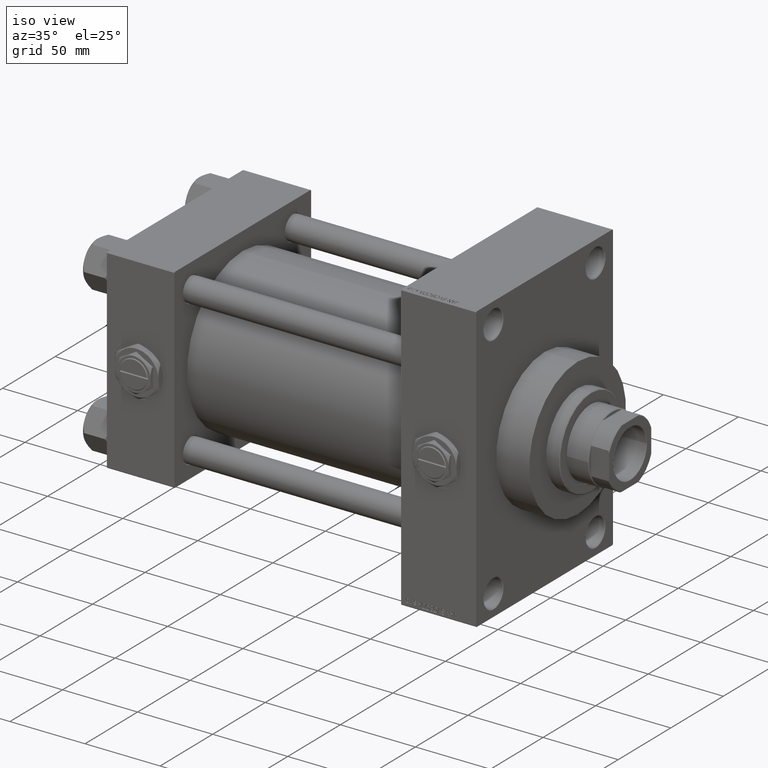
[diagram: clean part render]
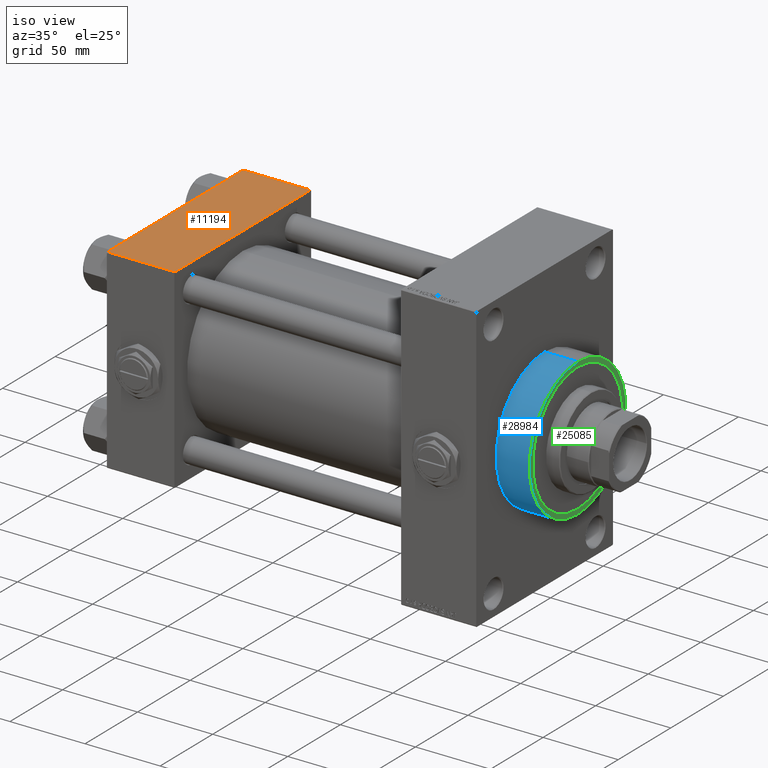
[diagram: same view with three faces highlighted in distinct colors, each labeled with its STEP entity id]
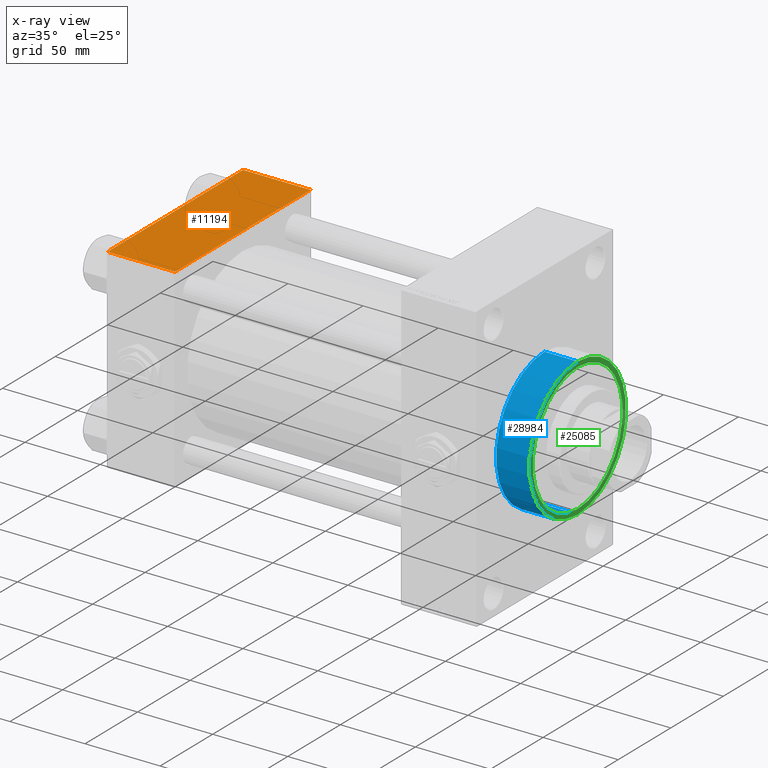
[diagram: x-ray of the same camera — body ghosted, the three highlighted faces saturated]
A machine part, iso view with three faces highlighted in distinct colors.
The next image is the same camera in x-ray (body ghosted, the three faces saturated) — at least one of them is partly hidden behind the body in this view.
Their STEP definitions:

[orange] entity #11194 — the highlighted planar face has unit normal (0, 0, -1).
#2160 = VECTOR ( 'NONE', #17843, 1000.000000000000000 ) ;
#2290 = ORIENTED_EDGE ( 'NONE', *, *, #33553, .T. ) ;
#3075 = AXIS2_PLACEMENT_3D ( 'NONE', #9891, #44373, #13673 ) ;
#4411 = EDGE_CURVE ( 'NONE', #39426, #11764, #44517, .T. ) ;
#6477 = VECTOR ( 'NONE', #29292, 1000.000000000000000 ) ;
#6479 = EDGE_CURVE ( 'NONE', #44081, #21522, #26556, .T. ) ;
#7022 = CARTESIAN_POINT ( 'NONE',  ( 0.000000000000000000, 64.49999999999997158, 65.00000000000001421 ) ) ;
#8071 = ORIENTED_EDGE ( 'NONE', *, *, #4411, .T. ) ;
#8901 = CARTESIAN_POINT ( 'NONE',  ( 0.000000000000000000, -64.49999999999997158, 65.00000000000000000 ) ) ;
#9658 = CARTESIAN_POINT ( 'NONE',  ( 45.00000000000000000, 65.00000000000000000, 65.00000000000001421 ) ) ;
#9891 = CARTESIAN_POINT ( 'NONE',  ( 45.00000000000000000, 65.00000000000000000, 65.00000000000001421 ) ) ;
#11182 = CARTESIAN_POINT ( 'NONE',  ( 45.00000000000000000, 64.49999999999997158, 65.00000000000001421 ) ) ;
#11194 = ADVANCED_FACE ( 'NONE', ( #29043 ), #48170, .F. ) ;
#11764 = VERTEX_POINT ( 'NONE', #37249 ) ;
#12440 = ORIENTED_EDGE ( 'NONE', *, *, #6479, .T. ) ;
#13673 = DIRECTION ( 'NONE',  ( 0.000000000000000000, 1.000000000000000000, 1.067522139062650548E-16 ) ) ;
#17843 = DIRECTION ( 'NONE',  ( 1.000000000000000000, 0.000000000000000000, 0.000000000000000000 ) ) ;
#20947 = ORIENTED_EDGE ( 'NONE', *, *, #23008, .F. ) ;
#21522 = VERTEX_POINT ( 'NONE', #7022 ) ;
#23008 = EDGE_CURVE ( 'NONE', #44081, #11764, #44135, .T. ) ;
#26556 = LINE ( 'NONE', #44912, #36004 ) ;
#28641 = DIRECTION ( 'NONE',  ( 0.000000000000000000, -1.000000000000000000, -1.067522139062650425E-16 ) ) ;
#29043 = FACE_OUTER_BOUND ( 'NONE', #39675, .T. ) ;
#29292 = DIRECTION ( 'NONE',  ( 0.000000000000000000, -1.000000000000000000, -1.067522139062650425E-16 ) ) ;
#30080 = DIRECTION ( 'NONE',  ( -1.000000000000000000, 0.000000000000000000, 0.000000000000000000 ) ) ;
#32412 = LINE ( 'NONE', #47771, #34039 ) ;
#33553 = EDGE_CURVE ( 'NONE', #21522, #39426, #32412, .T. ) ;
#34039 = VECTOR ( 'NONE', #28641, 1000.000000000000000 ) ;
#36004 = VECTOR ( 'NONE', #30080, 1000.000000000000000 ) ;
#36964 = CARTESIAN_POINT ( 'NONE',  ( 45.00000000000000000, -64.49999999999997158, 65.00000000000000000 ) ) ;
#37249 = CARTESIAN_POINT ( 'NONE',  ( 45.00000000000000000, -64.49999999999997158, 65.00000000000000000 ) ) ;
#39426 = VERTEX_POINT ( 'NONE', #8901 ) ;
#39675 = EDGE_LOOP ( 'NONE', ( #2290, #8071, #20947, #12440 ) ) ;
#44081 = VERTEX_POINT ( 'NONE', #11182 ) ;
#44135 = LINE ( 'NONE', #9658, #6477 ) ;
#44373 = DIRECTION ( 'NONE',  ( 0.000000000000000000, 1.067522139062650548E-16, -1.000000000000000000 ) ) ;
#44517 = LINE ( 'NONE', #36964, #2160 ) ;
#44912 = CARTESIAN_POINT ( 'NONE',  ( 0.000000000000000000, 64.49999999999997158, 65.00000000000001421 ) ) ;
#47771 = CARTESIAN_POINT ( 'NONE',  ( 0.000000000000000000, 65.00000000000000000, 65.00000000000001421 ) ) ;
#48170 = PLANE ( 'NONE',  #3075 ) ;

[blue] entity #28984 — the highlighted cylindrical surface (partial cylindrical patch) has radius 46 mm, axis along (-1, -0, -0).
#978 = DIRECTION ( 'NONE',  ( -1.000000000000000000, -0.000000000000000000, -0.000000000000000000 ) ) ;
#1813 = VERTEX_POINT ( 'NONE', #43743 ) ;
#3583 = CARTESIAN_POINT ( 'NONE',  ( 268.0000000000000000, 0.000000000000000000, 46.00000000000000000 ) ) ;
#5073 = VERTEX_POINT ( 'NONE', #35129 ) ;
#5233 = CARTESIAN_POINT ( 'NONE',  ( 246.0000000000000000, 0.000000000000000000, 0.000000000000000000 ) ) ;
#6692 = AXIS2_PLACEMENT_3D ( 'NONE', #29787, #49166, #10880 ) ;
#6700 = CARTESIAN_POINT ( 'NONE',  ( 268.0000000000000000, 5.633375276077824704E-15, -46.00000000000000000 ) ) ;
#8674 = ORIENTED_EDGE ( 'NONE', *, *, #42513, .T. ) ;
#10136 = FACE_OUTER_BOUND ( 'NONE', #34514, .T. ) ;
#10880 = DIRECTION ( 'NONE',  ( 0.000000000000000000, 0.000000000000000000, 1.000000000000000000 ) ) ;
#11114 = AXIS2_PLACEMENT_3D ( 'NONE', #24703, #13610, #25444 ) ;
#12090 = VECTOR ( 'NONE', #16855, 1000.000000000000000 ) ;
#13610 = DIRECTION ( 'NONE',  ( 1.000000000000000000, 0.000000000000000000, 0.000000000000000000 ) ) ;
#15138 = VECTOR ( 'NONE', #978, 1000.000000000000000 ) ;
#16604 = LINE ( 'NONE', #6700, #12090 ) ;
#16831 = VERTEX_POINT ( 'NONE', #3583 ) ;
#16855 = DIRECTION ( 'NONE',  ( -1.000000000000000000, -0.000000000000000000, -0.000000000000000000 ) ) ;
#19355 = LINE ( 'NONE', #20100, #15138 ) ;
#20100 = CARTESIAN_POINT ( 'NONE',  ( 268.0000000000000000, 0.000000000000000000, 46.00000000000000000 ) ) ;
#21570 = AXIS2_PLACEMENT_3D ( 'NONE', #5233, #32677, #49212 ) ;
#24337 = CARTESIAN_POINT ( 'NONE',  ( 246.0000000000000000, 5.633375276077824704E-15, -46.00000000000000000 ) ) ;
#24703 = CARTESIAN_POINT ( 'NONE',  ( 268.0000000000000000, 0.000000000000000000, 0.000000000000000000 ) ) ;
#25444 = DIRECTION ( 'NONE',  ( 0.000000000000000000, 0.000000000000000000, -1.000000000000000000 ) ) ;
#28558 = VERTEX_POINT ( 'NONE', #24337 ) ;
#28984 = ADVANCED_FACE ( 'NONE', ( #10136 ), #49418, .T. ) ;
#29316 = ORIENTED_EDGE ( 'NONE', *, *, #40971, .F. ) ;
#29787 = CARTESIAN_POINT ( 'NONE',  ( 268.0000000000000000, 0.000000000000000000, 0.000000000000000000 ) ) ;
#30531 = ORIENTED_EDGE ( 'NONE', *, *, #49752, .F. ) ;
#32677 = DIRECTION ( 'NONE',  ( 1.000000000000000000, 0.000000000000000000, 0.000000000000000000 ) ) ;
#32836 = CIRCLE ( 'NONE', #11114, 46.00000000000000000 ) ;
#34514 = EDGE_LOOP ( 'NONE', ( #30531, #29316, #42559, #8674 ) ) ;
#35129 = CARTESIAN_POINT ( 'NONE',  ( 246.0000000000000000, 0.000000000000000000, 46.00000000000000000 ) ) ;
#35273 = CIRCLE ( 'NONE', #21570, 46.00000000000000000 ) ;
#40971 = EDGE_CURVE ( 'NONE', #16831, #1813, #32836, .T. ) ;
#42441 = EDGE_CURVE ( 'NONE', #16831, #5073, #19355, .T. ) ;
#42513 = EDGE_CURVE ( 'NONE', #5073, #28558, #35273, .T. ) ;
#42559 = ORIENTED_EDGE ( 'NONE', *, *, #42441, .T. ) ;
#43743 = CARTESIAN_POINT ( 'NONE',  ( 268.0000000000000000, 5.633375276077824704E-15, -46.00000000000000000 ) ) ;
#49166 = DIRECTION ( 'NONE',  ( -1.000000000000000000, -0.000000000000000000, -0.000000000000000000 ) ) ;
#49212 = DIRECTION ( 'NONE',  ( 0.000000000000000000, 0.000000000000000000, -1.000000000000000000 ) ) ;
#49418 = CYLINDRICAL_SURFACE ( 'NONE', #6692, 46.00000000000000000 ) ;
#49752 = EDGE_CURVE ( 'NONE', #1813, #28558, #16604, .T. ) ;

[green] entity #25085 — the highlighted planar face has unit normal (1, 0, 0).
#1124 = CIRCLE ( 'NONE', #7562, 42.75000000000000000 ) ;
#1314 = EDGE_LOOP ( 'NONE', ( #46510, #48127 ) ) ;
#1513 = CARTESIAN_POINT ( 'NONE',  ( 268.0000000000000000, 0.000000000000000000, 0.000000000000000000 ) ) ;
#1813 = VERTEX_POINT ( 'NONE', #43743 ) ;
#3583 = CARTESIAN_POINT ( 'NONE',  ( 268.0000000000000000, 0.000000000000000000, 46.00000000000000000 ) ) ;
#7562 = AXIS2_PLACEMENT_3D ( 'NONE', #36054, #13390, #47887 ) ;
#7708 = EDGE_CURVE ( 'NONE', #30868, #26342, #32846, .T. ) ;
#9467 = ORIENTED_EDGE ( 'NONE', *, *, #34210, .F. ) ;
#11108 = EDGE_CURVE ( 'NONE', #1813, #16831, #42453, .T. ) ;
#11114 = AXIS2_PLACEMENT_3D ( 'NONE', #24703, #13610, #25444 ) ;
#13390 = DIRECTION ( 'NONE',  ( 1.000000000000000000, 0.000000000000000000, 0.000000000000000000 ) ) ;
#13610 = DIRECTION ( 'NONE',  ( 1.000000000000000000, 0.000000000000000000, 0.000000000000000000 ) ) ;
#15945 = AXIS2_PLACEMENT_3D ( 'NONE', #47355, #44310, #28479 ) ;
#15957 = DIRECTION ( 'NONE',  ( 0.000000000000000000, 0.000000000000000000, -1.000000000000000000 ) ) ;
#16126 = FACE_BOUND ( 'NONE', #28803, .T. ) ;
#16831 = VERTEX_POINT ( 'NONE', #3583 ) ;
#18343 = AXIS2_PLACEMENT_3D ( 'NONE', #46425, #39106, #15957 ) ;
#19892 = PLANE ( 'NONE',  #48359 ) ;
#24703 = CARTESIAN_POINT ( 'NONE',  ( 268.0000000000000000, 0.000000000000000000, 0.000000000000000000 ) ) ;
#25085 = ADVANCED_FACE ( 'NONE', ( #16126, #35990 ), #19892, .T. ) ;
#25444 = DIRECTION ( 'NONE',  ( 0.000000000000000000, 0.000000000000000000, -1.000000000000000000 ) ) ;
#26342 = VERTEX_POINT ( 'NONE', #29722 ) ;
#27255 = CARTESIAN_POINT ( 'NONE',  ( 268.0000000000000000, 5.235365066354935472E-15, 42.75000000000000000 ) ) ;
#28452 = DIRECTION ( 'NONE',  ( 0.000000000000000000, 0.000000000000000000, -1.000000000000000000 ) ) ;
#28479 = DIRECTION ( 'NONE',  ( 0.000000000000000000, 0.000000000000000000, -1.000000000000000000 ) ) ;
#28803 = EDGE_LOOP ( 'NONE', ( #9467, #34368 ) ) ;
#29722 = CARTESIAN_POINT ( 'NONE',  ( 268.0000000000000000, 0.000000000000000000, -42.75000000000000000 ) ) ;
#30868 = VERTEX_POINT ( 'NONE', #27255 ) ;
#32836 = CIRCLE ( 'NONE', #11114, 46.00000000000000000 ) ;
#32846 = CIRCLE ( 'NONE', #15945, 42.75000000000000000 ) ;
#34210 = EDGE_CURVE ( 'NONE', #26342, #30868, #1124, .T. ) ;
#34368 = ORIENTED_EDGE ( 'NONE', *, *, #7708, .F. ) ;
#35990 = FACE_OUTER_BOUND ( 'NONE', #1314, .T. ) ;
#36054 = CARTESIAN_POINT ( 'NONE',  ( 268.0000000000000000, 0.000000000000000000, 0.000000000000000000 ) ) ;
#39106 = DIRECTION ( 'NONE',  ( 1.000000000000000000, 0.000000000000000000, 0.000000000000000000 ) ) ;
#40971 = EDGE_CURVE ( 'NONE', #16831, #1813, #32836, .T. ) ;
#42453 = CIRCLE ( 'NONE', #18343, 46.00000000000000000 ) ;
#43743 = CARTESIAN_POINT ( 'NONE',  ( 268.0000000000000000, 5.633375276077824704E-15, -46.00000000000000000 ) ) ;
#44310 = DIRECTION ( 'NONE',  ( 1.000000000000000000, 0.000000000000000000, 0.000000000000000000 ) ) ;
#46425 = CARTESIAN_POINT ( 'NONE',  ( 268.0000000000000000, 0.000000000000000000, 0.000000000000000000 ) ) ;
#46510 = ORIENTED_EDGE ( 'NONE', *, *, #40971, .T. ) ;
#47355 = CARTESIAN_POINT ( 'NONE',  ( 268.0000000000000000, 0.000000000000000000, 0.000000000000000000 ) ) ;
#47584 = DIRECTION ( 'NONE',  ( 1.000000000000000000, 0.000000000000000000, 0.000000000000000000 ) ) ;
#47887 = DIRECTION ( 'NONE',  ( 0.000000000000000000, 0.000000000000000000, -1.000000000000000000 ) ) ;
#48127 = ORIENTED_EDGE ( 'NONE', *, *, #11108, .T. ) ;
#48359 = AXIS2_PLACEMENT_3D ( 'NONE', #1513, #47584, #28452 ) ;